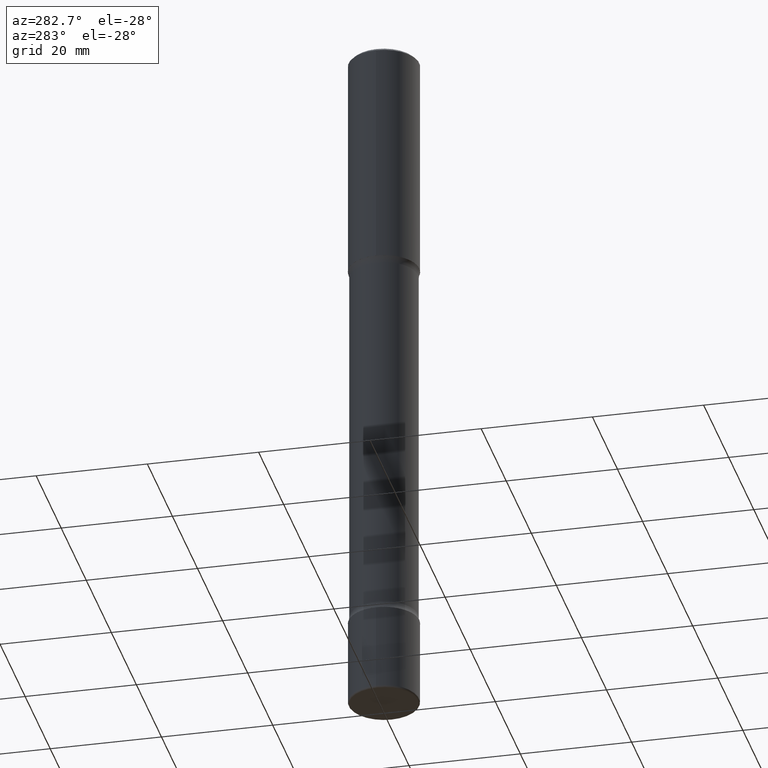
[diagram: clean part render]
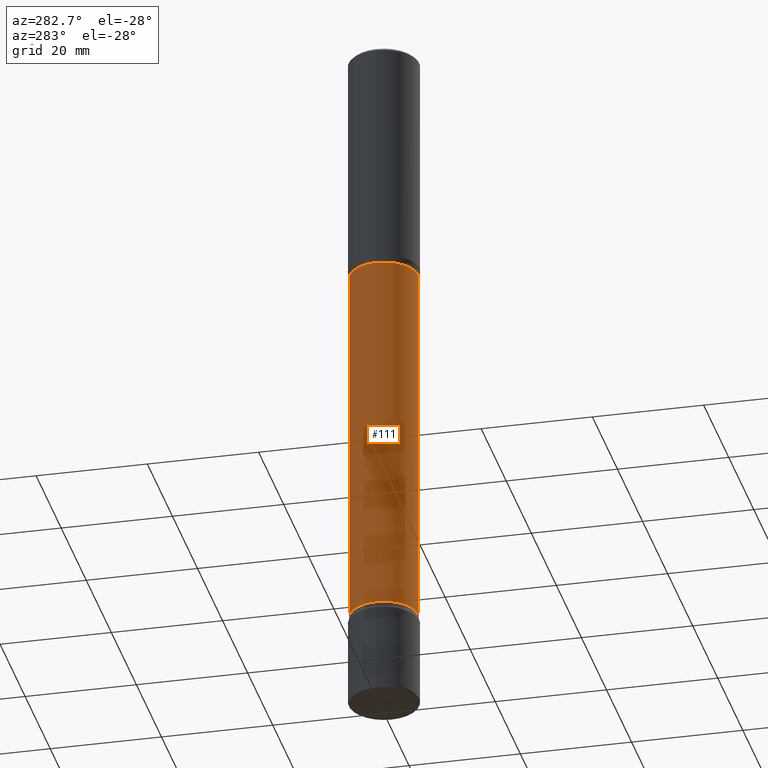
[diagram: same view with one face highlighted and labeled with its STEP entity id]
A machine part, auxiliary view. The second image highlights one B-rep face of the part: STEP entity #111.
In plain terms, the highlighted cylindrical surface (edge-blend (fillet) strip) has radius 6.096 mm, axis along (0, -0, -1).
Its self-contained STEP definition (entity closure, byte-faithful):
#11 = CARTESIAN_POINT ( 'NONE',  ( 1.675911042644828414E-15, 0.2399999999999828659, -5.000000000000000888 ) ) ;
#23 = CARTESIAN_POINT ( 'NONE',  ( 1.232272599383003257E-28, -1.732081429453251623E-14, -5.000000000000000000 ) ) ;
#42 = EDGE_CURVE ( 'NONE', #226, #437, #213, .T. ) ;
#52 = ORIENTED_EDGE ( 'NONE', *, *, #342, .F. ) ;
#69 = EDGE_LOOP ( 'NONE', ( #123, #511, #173, #52 ) ) ;
#83 = VECTOR ( 'NONE', #231, 39.37007874015748143 ) ;
#87 = CARTESIAN_POINT ( 'NONE',  ( -1.680822009453992684E-15, -0.2400000000000068190, -1.673989794855663682 ) ) ;
#92 = DIRECTION ( 'NONE',  ( 2.598079946832093802E-29, -3.272933499350004525E-15, -1.000000000000000000 ) ) ;
#96 = AXIS2_PLACEMENT_3D ( 'NONE', #340, #302, #307 ) ;
#111 = ADVANCED_FACE ( 'NONE', ( #411 ), #406, .T. ) ;
#123 = ORIENTED_EDGE ( 'NONE', *, *, #275, .F. ) ;
#157 = EDGE_CURVE ( 'NONE', #287, #226, #396, .T. ) ;
#158 = VECTOR ( 'NONE', #92, 39.37007874015748143 ) ;
#173 = ORIENTED_EDGE ( 'NONE', *, *, #42, .T. ) ;
#189 = CIRCLE ( 'NONE', #96, 0.2399999999999999634 ) ;
#203 = CARTESIAN_POINT ( 'NONE',  ( 1.675911042644743611E-15, 0.2399999999999939959, -1.673989794855665458 ) ) ;
#210 = DIRECTION ( 'NONE',  ( 2.598079946832093802E-29, -3.272933499350004525E-15, -1.000000000000000000 ) ) ;
#213 = LINE ( 'NONE', #11, #158 ) ;
#226 = VERTEX_POINT ( 'NONE', #203 ) ;
#231 = DIRECTION ( 'NONE',  ( 2.598079946832093802E-29, -3.272933499350004525E-15, -1.000000000000000000 ) ) ;
#236 = CARTESIAN_POINT ( 'NONE',  ( -1.646519519465045286E-15, -0.2400000000000174771, -4.999999999999999112 ) ) ;
#275 = EDGE_CURVE ( 'NONE', #287, #357, #320, .T. ) ;
#283 = CARTESIAN_POINT ( 'NONE',  ( 1.675911042644809481E-15, 0.2399999999999848366, -4.326010205144337206 ) ) ;
#287 = VERTEX_POINT ( 'NONE', #87 ) ;
#302 = DIRECTION ( 'NONE',  ( 2.598079946832093802E-29, -3.272933499350004525E-15, -1.000000000000000000 ) ) ;
#307 = DIRECTION ( 'NONE',  ( 6.982962677686265922E-15, 1.000000000000000000, -2.276539994720219546E-15 ) ) ;
#314 = CARTESIAN_POINT ( 'NONE',  ( 3.681485576885634284E-29, -6.435004074935638315E-15, -1.673989794855664570 ) ) ;
#320 = LINE ( 'NONE', #236, #83 ) ;
#340 = CARTESIAN_POINT ( 'NONE',  ( 1.057164662344605565E-28, -1.511489051672937447E-14, -4.326010205144336318 ) ) ;
#342 = EDGE_CURVE ( 'NONE', #357, #437, #189, .T. ) ;
#344 = DIRECTION ( 'NONE',  ( 6.982962677686265922E-15, 1.000000000000000000, -3.414809992080323205E-15 ) ) ;
#357 = VERTEX_POINT ( 'NONE', #424 ) ;
#358 = DIRECTION ( 'NONE',  ( 2.598079946832093802E-29, -3.272933499350004525E-15, -1.000000000000000000 ) ) ;
#381 = AXIS2_PLACEMENT_3D ( 'NONE', #23, #358, #541 ) ;
#396 = CIRCLE ( 'NONE', #527, 0.2400000000000004075 ) ;
#406 = CYLINDRICAL_SURFACE ( 'NONE', #381, 0.2400000000000001854 ) ;
#411 = FACE_OUTER_BOUND ( 'NONE', #69, .T. ) ;
#424 = CARTESIAN_POINT ( 'NONE',  ( -1.680822009453918926E-15, -0.2400000000000150902, -4.326010205144336318 ) ) ;
#437 = VERTEX_POINT ( 'NONE', #283 ) ;
#511 = ORIENTED_EDGE ( 'NONE', *, *, #157, .T. ) ;
#527 = AXIS2_PLACEMENT_3D ( 'NONE', #314, #210, #344 ) ;
#541 = DIRECTION ( 'NONE',  ( 6.982962677686265922E-15, 1.000000000000000000, -4.553079989440435148E-15 ) ) ;